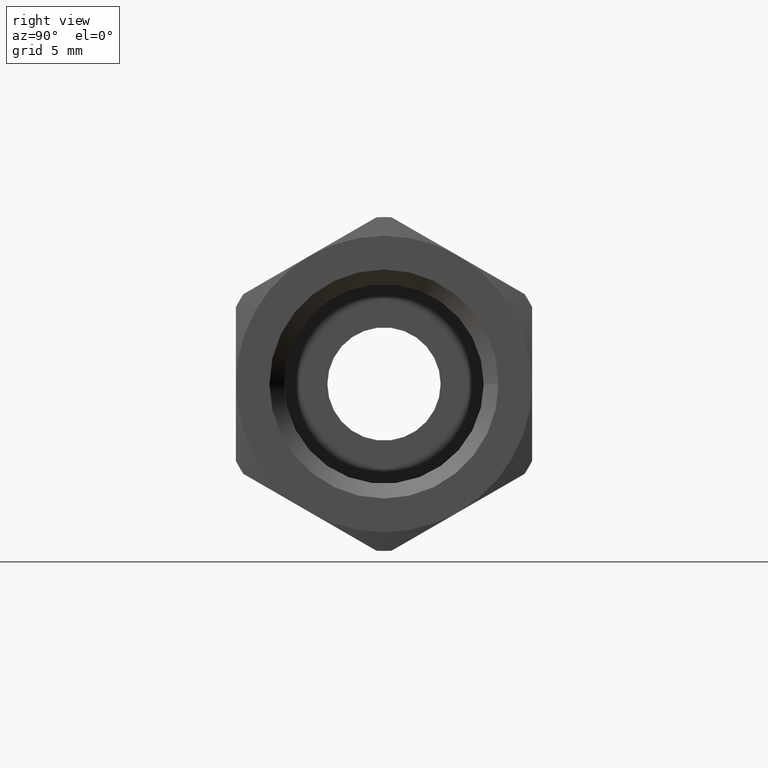
[diagram: clean part render]
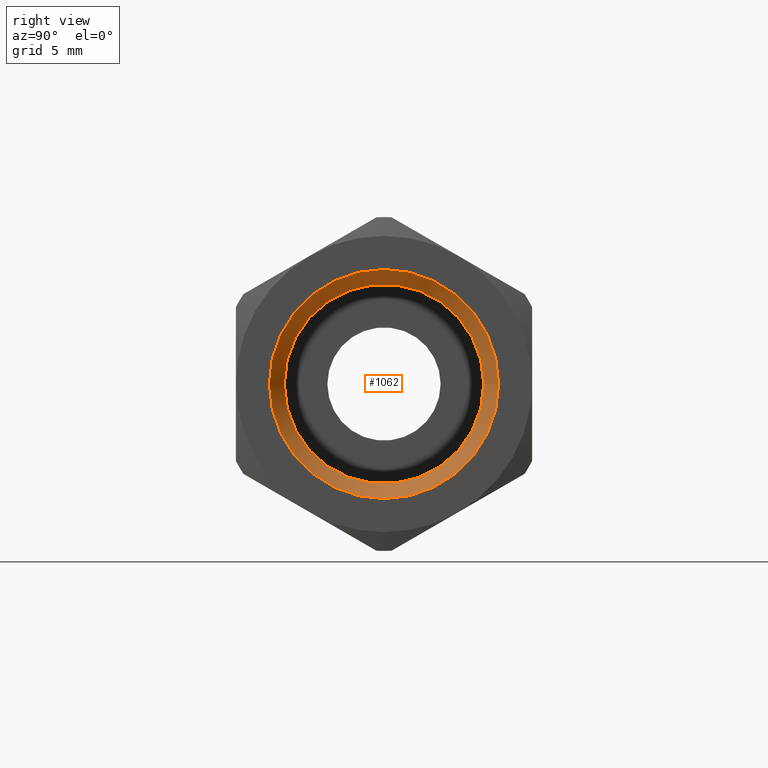
[diagram: same view with one face highlighted and labeled with its STEP entity id]
A machine part, right view. The second image highlights one B-rep face of the part: STEP entity #1062.
In plain terms, the highlighted conical surface has half-angle 45 deg.
Its self-contained STEP definition (entity closure, byte-faithful):
#1035=CARTESIAN_POINT('',(32.825000000000003,0.0,0.0));
#1036=DIRECTION('',(1.0,0.0,0.0));
#1037=DIRECTION('',(0.0,-1.0,0.0));
#1038=AXIS2_PLACEMENT_3D('',#1035,#1036,#1037);
#1039=CONICAL_SURFACE('',#1038,6.147500000000000,45.000000000000007);
#1040=CARTESIAN_POINT('',(33.250000000000000,6.572500000000000,8.048991E-016));
#1041=VERTEX_POINT('',#1040);
#1042=CARTESIAN_POINT('',(33.250000000000000,0.0,0.0));
#1043=DIRECTION('',(1.0,0.0,0.0));
#1044=DIRECTION('',(0.0,-1.0,0.0));
#1045=AXIS2_PLACEMENT_3D('',#1042,#1043,#1044);
#1046=CIRCLE('',#1045,6.572500000000000);
#1047=EDGE_CURVE('',#1041,#1041,#1046,.T.);
#1048=ORIENTED_EDGE('',*,*,#1047,.T.);
#1049=EDGE_LOOP('',(#1048));
#1050=FACE_OUTER_BOUND('',#1049,.T.);
#1051=CARTESIAN_POINT('',(32.400000000000006,5.722500000000000,-7.008041E-016));
#1052=VERTEX_POINT('',#1051);
#1053=CARTESIAN_POINT('',(32.400000000000006,0.0,0.0));
#1054=DIRECTION('',(-1.0,0.0,0.0));
#1055=DIRECTION('',(0.0,-1.0,0.0));
#1056=AXIS2_PLACEMENT_3D('',#1053,#1054,#1055);
#1057=CIRCLE('',#1056,5.722500000000000);
#1058=EDGE_CURVE('',#1052,#1052,#1057,.T.);
#1059=ORIENTED_EDGE('',*,*,#1058,.T.);
#1060=EDGE_LOOP('',(#1059));
#1061=FACE_BOUND('',#1060,.T.);
#1062=ADVANCED_FACE('',(#1050,#1061),#1039,.F.);